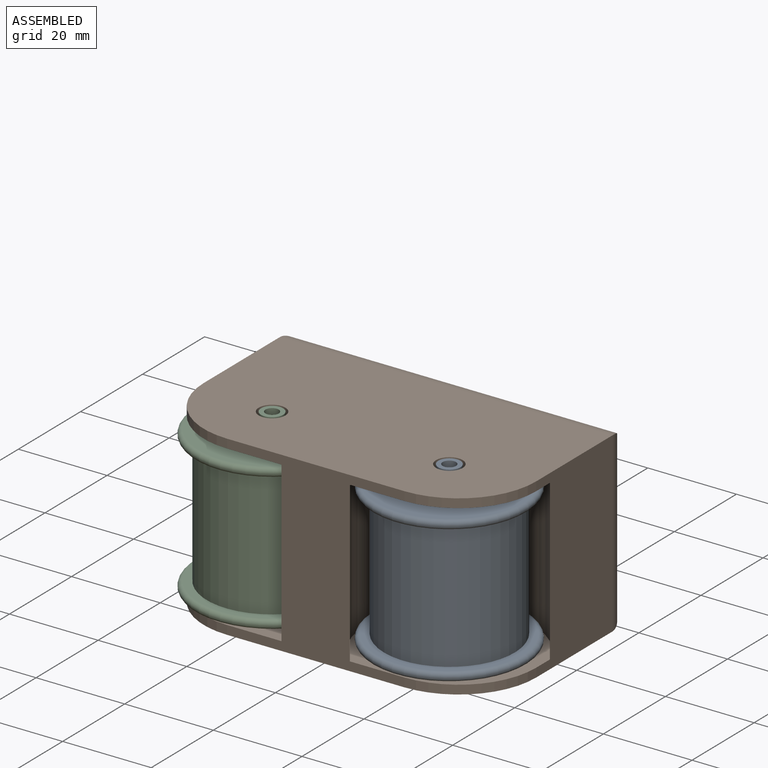
[diagram: assembled view]
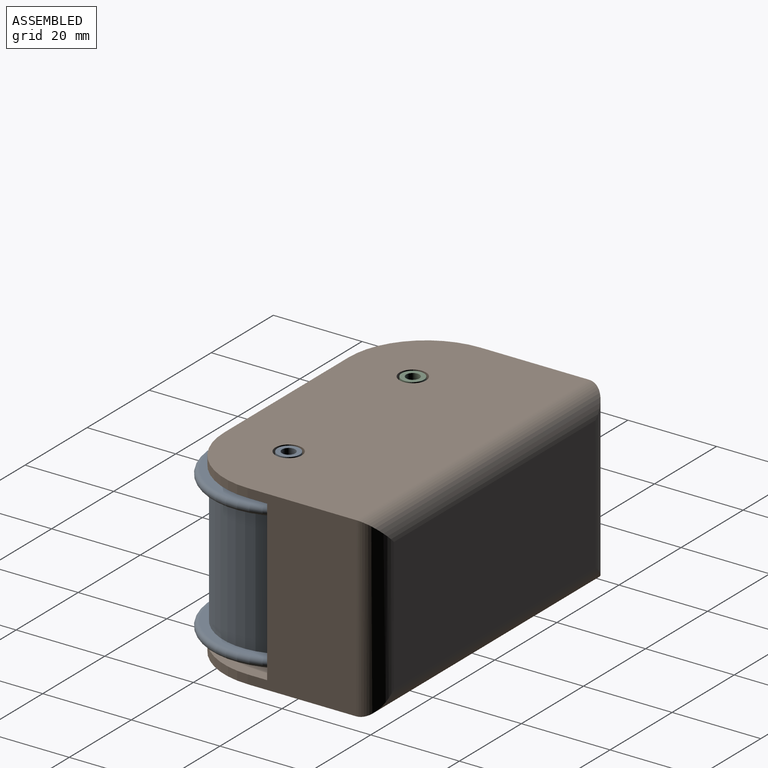
[diagram: assembled view, second angle]
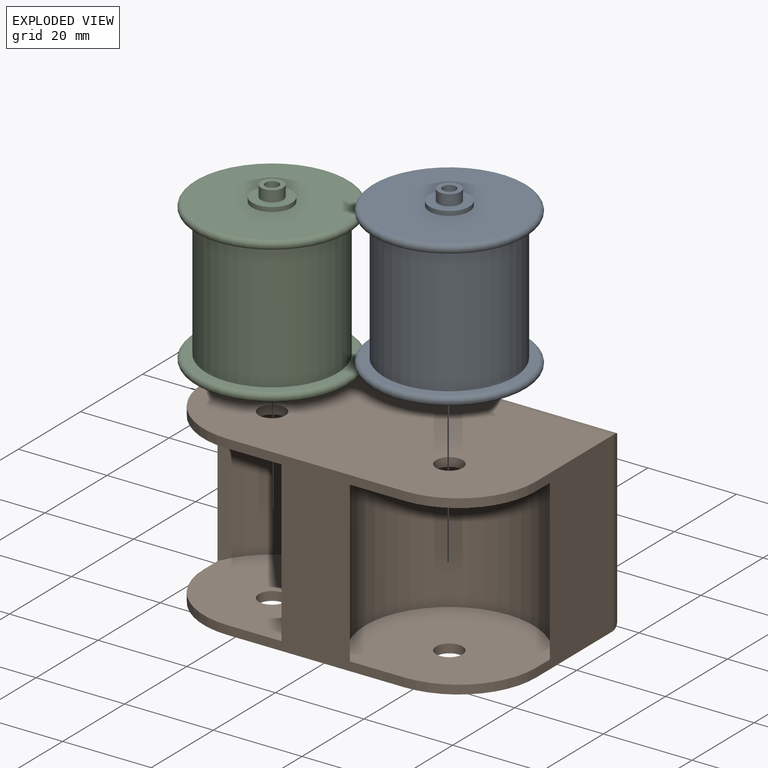
[diagram: exploded view]
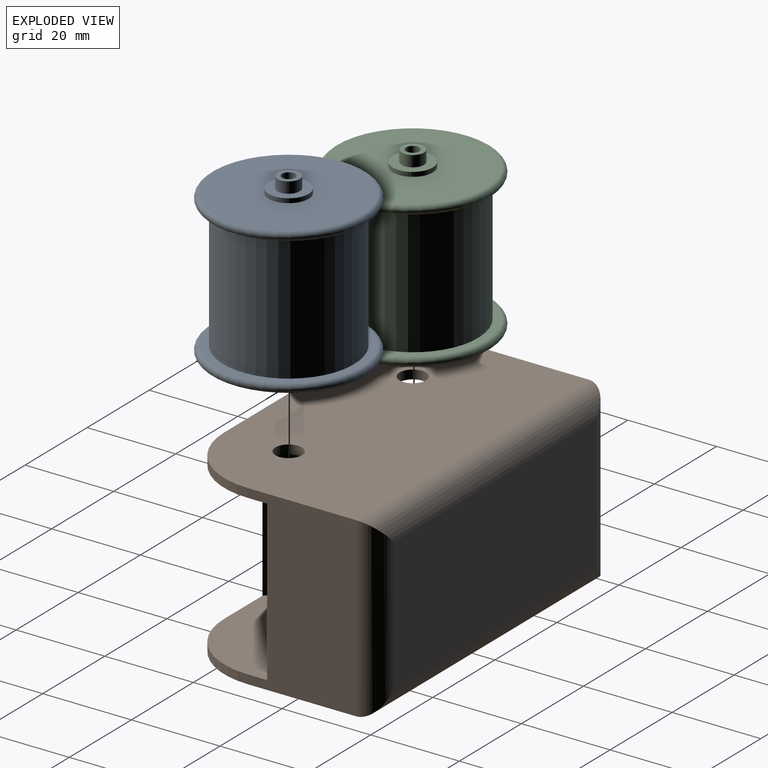
[diagram: exploded view, second angle]
ASSEMBLY  parts=3 mates=2
PART A: 22 faces, bbox 40x37.9x37.9 mm
  f0: cylinder r=14.75mm len=29.5mm, axis (-1,0,0), area 2687.6mm2, adj f1,f16
  f1: plane 33x33mm, normal (1,0,0), area 171.8mm2, adj f0,f18
  f2: plane 33x33mm, normal (-1,0,0), area 791.7mm2, adj f3,f18
  f3: cylinder r=4.5mm len=9mm, axis (-1,0,0), area 28.3mm2, adj f2,f4
  f4: plane 9x9mm, normal (-1,0,0), area 44mm2, adj f3,f5
  f5: cylinder r=2.5mm len=5mm, axis (-1,0,0), area 39.3mm2, adj f4,f6
  f6: plane 5x5mm, normal (-1,0,0), area 12.6mm2, adj f5,f7
  f7: cylinder r=1.5mm len=3.5mm, axis (-1,0,0), area 33mm2, adj f6,f8
  f8: plane 3x3mm, normal (-1,0,0), area 7.1mm2, adj f7
  f9: plane 3x3mm, normal (1,0,0), area 7.1mm2, adj f10
  f10: cylinder r=1.5mm len=3.5mm, axis (1,0,0), area 33mm2, adj f9,f11
  f11: plane 5x5mm, normal (1,0,0), area 12.6mm2, adj f10,f12
  f12: cylinder r=2.5mm len=5mm, axis (1,0,0), area 39.3mm2, adj f11,f13
  f13: plane 9x9mm, normal (1,0,0), area 44mm2, adj f12,f14
  f14: cylinder r=4.5mm len=9mm, axis (1,0,0), area 28.3mm2, adj f13,f15
  f15: plane 33x33mm, normal (1,0,0), area 791.7mm2, adj f14,f17
  f16: plane 33x33mm, normal (-1,0,0), area 171.8mm2, adj f0,f17
  f17: torus R=16.5mm, axis (-1,0,0), area 338.3mm2, adj f15,f16
  f18: torus R=16.5mm, axis (-1,0,0), area 338.3mm2, adj f1,f2
  f19: plane 25.5x25.5mm, normal (-1,0,0), area 510.7mm2, adj f21
  f20: plane 25.5x25.5mm, normal (1,0,0), area 510.7mm2, adj f21
  f21: cylinder r=12.75mm len=29mm, axis (-1,0,0), area 2323.2mm2, adj f19,f20
PART B: 24 faces, bbox 40x75x47 mm
  f0: cylinder r=19mm len=36.5mm, axis (-1,0,0), area 2469.1mm2, adj f4,f5,f13,f19
  f1: cylinder r=19mm len=36.5mm, axis (-1,0,0), area 2469.1mm2, adj f2,f5,f10,f16
  f2: plane 40x24.5mm, normal (0,1,0), area 821.6mm2, adj f1,f6,f7,f9,f10,f15,f16,f23
  f3: plane 65x30mm, normal (0,0,1), area 1950mm2, adj f20,f21,f22,f23
  f4: plane 40x24.5mm, normal (0,-1,0), area 821.6mm2, adj f0,f6,f7,f12,f13,f18,f19,f20
  f5: plane 40x40mm, normal (0,0,-1), area 716mm2, adj f0,f1,f6,f7,f9,f10,f12,f13
  f6: plane 75x42mm, normal (1,0,0), area 2962mm2, adj f2,f4,f5,f14,f15,f17,f18,f21
  f7: plane 75x42mm, normal (-1,0,0), area 2962mm2, adj f2,f4,f5,f8,f9,f11,f12,f22
  f8: cylinder r=3mm len=6mm, axis (-1,0,0), area 37.7mm2, adj f7,f10
  f9: cylinder r=17.5mm len=17.5mm, axis (-1,0,0), area 55mm2, adj f2,f5,f7,f10
  f10: plane 36.5x33.5mm, normal (1,0,0), area 965.1mm2, adj f1,f2,f5,f8,f9
  f11: cylinder r=3mm len=6mm, axis (-1,0,0), area 37.7mm2, adj f7,f13
  f12: cylinder r=17.5mm len=17.5mm, axis (-1,0,0), area 55mm2, adj f4,f5,f7,f13
  f13: plane 36.5x33.5mm, normal (1,0,0), area 965.1mm2, adj f0,f4,f5,f11,f12
  f14: cylinder r=3mm len=6mm, axis (1,0,0), area 37.7mm2, adj f6,f16
  f15: cylinder r=17.5mm len=17.5mm, axis (1,0,0), area 55mm2, adj f2,f5,f6,f16
  f16: plane 36.5x33.5mm, normal (-1,0,0), area 965.1mm2, adj f1,f2,f5,f14,f15
  f17: cylinder r=3mm len=6mm, axis (1,0,0), area 37.7mm2, adj f6,f19
  f18: cylinder r=17.5mm len=17.5mm, axis (1,0,0), area 55mm2, adj f4,f5,f6,f19
  f19: plane 36.5x33.5mm, normal (-1,0,0), area 965.1mm2, adj f0,f4,f5,f17,f18
  f20: cylinder r=5mm len=40mm, axis (-1,0,0), area 285.6mm2, adj f3,f4,f21,f22
  f21: cylinder r=5mm len=75mm, axis (0,1,0), area 560.5mm2, adj f3,f6,f20,f23
  f22: cylinder r=5mm len=75mm, axis (0,-1,0), area 560.5mm2, adj f3,f7,f20,f23
  f23: cylinder r=5mm len=40mm, axis (-1,0,0), area 285.6mm2, adj f2,f3,f21,f22
PART C: 22 faces, bbox 40x37.9x37.9 mm
  f0: cylinder r=14.75mm len=29.5mm, axis (-1,0,0), area 2687.6mm2, adj f1,f16
  f1: plane 33x33mm, normal (1,0,0), area 171.8mm2, adj f0,f18
  f2: plane 33x33mm, normal (-1,0,0), area 791.7mm2, adj f3,f18
  f3: cylinder r=4.5mm len=9mm, axis (-1,0,0), area 28.3mm2, adj f2,f4
  f4: plane 9x9mm, normal (-1,0,0), area 44mm2, adj f3,f5
  f5: cylinder r=2.5mm len=5mm, axis (-1,0,0), area 39.3mm2, adj f4,f6
  f6: plane 5x5mm, normal (-1,0,0), area 12.6mm2, adj f5,f7
  f7: cylinder r=1.5mm len=3.5mm, axis (-1,0,0), area 33mm2, adj f6,f8
  f8: plane 3x3mm, normal (-1,0,0), area 7.1mm2, adj f7
  f9: plane 3x3mm, normal (1,0,0), area 7.1mm2, adj f10
  f10: cylinder r=1.5mm len=3.5mm, axis (1,0,0), area 33mm2, adj f9,f11
  f11: plane 5x5mm, normal (1,0,0), area 12.6mm2, adj f10,f12
  f12: cylinder r=2.5mm len=5mm, axis (1,0,0), area 39.3mm2, adj f11,f13
  f13: plane 9x9mm, normal (1,0,0), area 44mm2, adj f12,f14
  f14: cylinder r=4.5mm len=9mm, axis (1,0,0), area 28.3mm2, adj f13,f15
  f15: plane 33x33mm, normal (1,0,0), area 791.7mm2, adj f14,f17
  f16: plane 33x33mm, normal (-1,0,0), area 171.8mm2, adj f0,f17
  f17: torus R=16.5mm, axis (-1,0,0), area 338.3mm2, adj f15,f16
  f18: torus R=16.5mm, axis (-1,0,0), area 338.3mm2, adj f1,f2
  f19: plane 25.5x25.5mm, normal (-1,0,0), area 510.7mm2, adj f21
  f20: plane 25.5x25.5mm, normal (1,0,0), area 510.7mm2, adj f21
  f21: cylinder r=12.75mm len=29mm, axis (-1,0,0), area 2323.2mm2, adj f19,f20
PLACE A rot(axis=(0.09,-0.99,0.09),90.5deg) t=(27.28,-71.83,0)mm
PLACE B rot(axis=(-0.58,-0.58,-0.58),120deg) t=(-20,-32.5,0)mm
PLACE C rot(axis=(-0.57,-0.59,-0.57),119.1deg) t=(-20,-32.5,0)mm
MATE revolute A.f0 <-> B.f1  axis (0,0,1) through (20,-32.5,20)mm
MATE revolute C.f0 <-> B.f0  axis (0,0,1) through (-20,-32.5,20)mm
